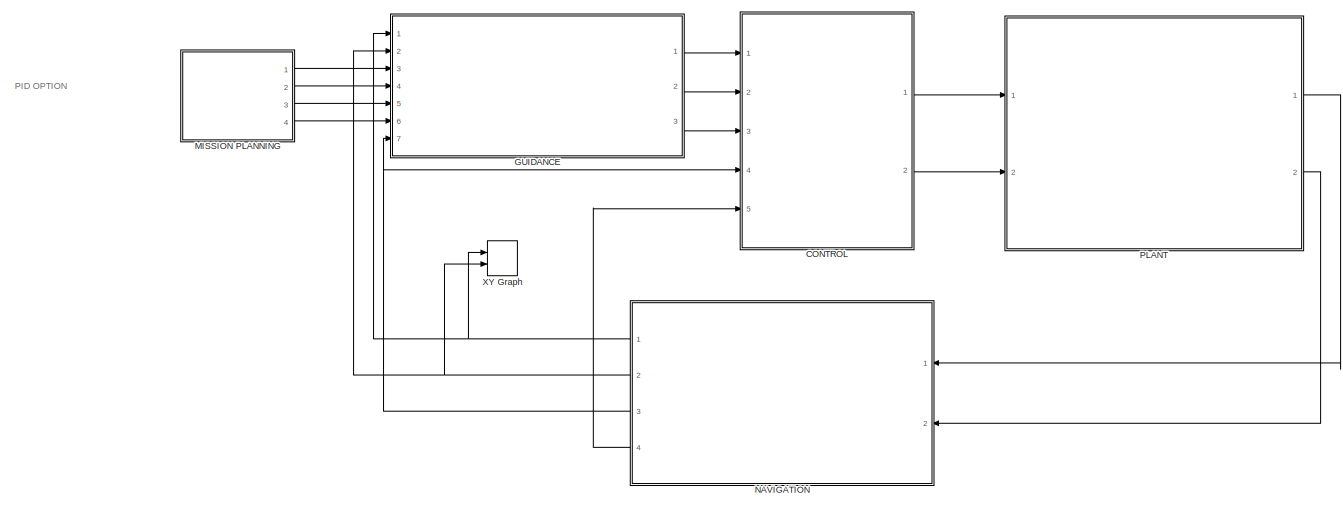
[diagram: root canvas - part 1/2, full width, top band]
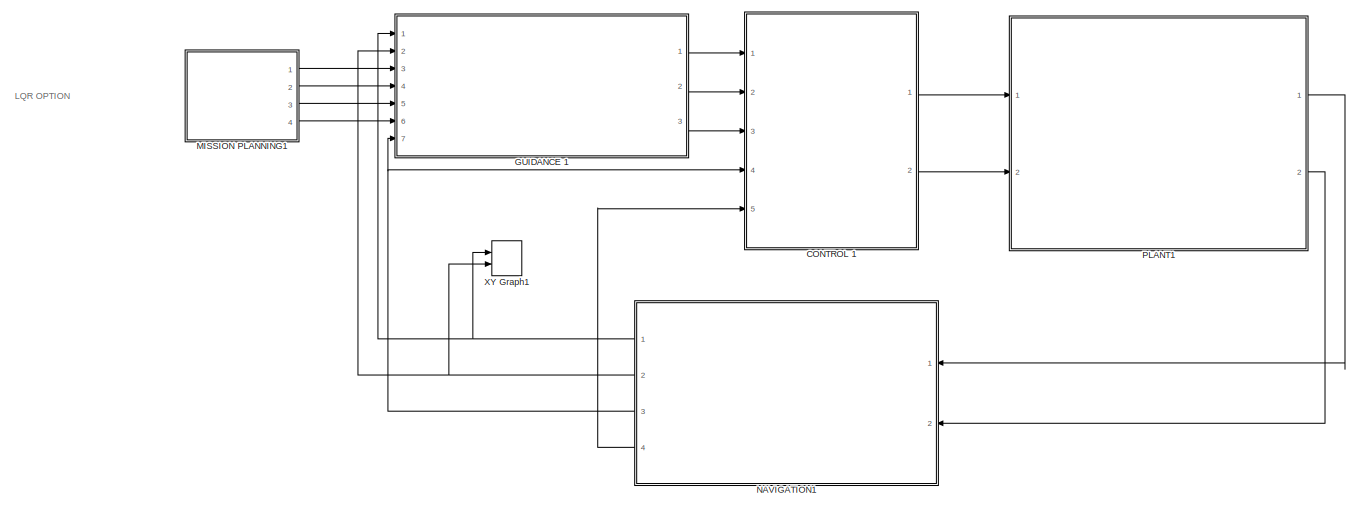
[diagram: root canvas - part 2/2, full width, bottom band]
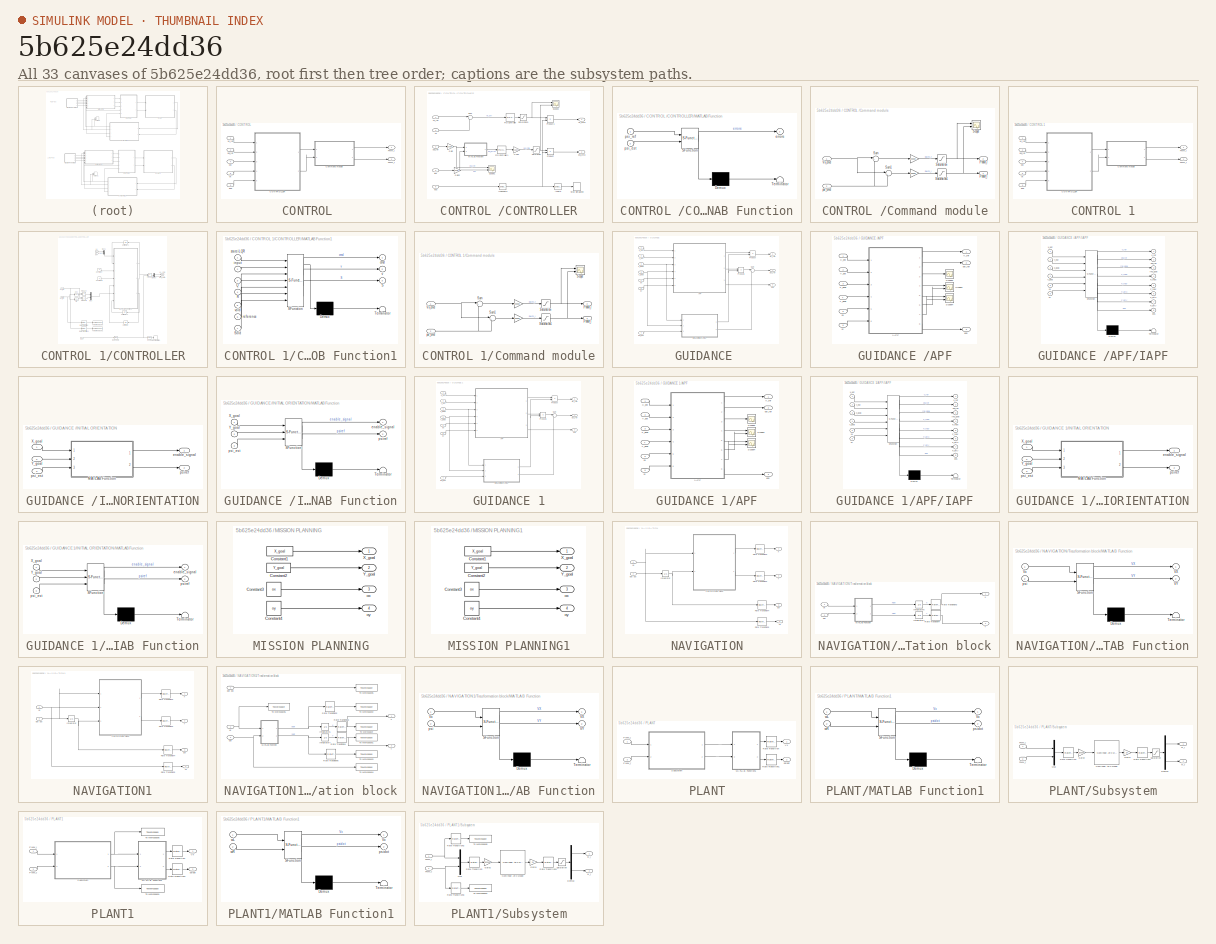
[diagram: thumbnail index - all 33 canvases of the model, root first then tree order]
MODEL slx_5b625e24dd36
KIND model
CONFIG AbsTol = auto
CONFIG EnableMultiTasking = off
CONFIG FixedStep = 0.01
CONFIG MaxStep = auto
CONFIG MinStep = auto
CONFIG RelTol = 1e-3
CONFIG SampleTimeConstraint = Unconstrained
CONFIG SolverName = ode1
CONFIG StartTime = 0.0
CONFIG StopTime = 90
BLOCK [SubSystem] CONTROL 
  Ports = [5, 2]
  RequestExecContextInheritance = off
BLOCK [SubSystem] CONTROL /CONTROLLER
  Ports = [5, 2]
  RequestExecContextInheritance = off
BLOCK [Gain] CONTROL /CONTROLLER/1//180
  Gain = 1/180
BLOCK [Gain] CONTROL /CONTROLLER/Gain
  Gain = 180/pi
BLOCK [Gain] CONTROL /CONTROLLER/Gain2
  Gain = 180/pi
BLOCK [Reference] CONTROL /CONTROLLER/IsNonZero  REF=simulink/Logic and Bit
Operations/Compare
To Zero
  Ports = [1, 1]
  SourceBlock = simulink/Logic and Bit\nOperations/Compare\nTo Zero
  SourceProductBaseCode = SL
  SourceType = Compare To Zero
BLOCK [Reference] CONTROL /CONTROLLER/IsZero  REF=simulink/Logic and Bit
Operations/Compare
To Zero
  Ports = [1, 1]
  SourceBlock = simulink/Logic and Bit\nOperations/Compare\nTo Zero
  SourceProductBaseCode = SL
  SourceType = Compare To Zero
BLOCK [SubSystem] CONTROL /CONTROLLER/MATLAB Function
  ErrorFcn = Stateflow.Translate.translate
  PermitHierarchicalResolution = ExplicitOnly
  Ports = [2, 1]
  RequestExecContextInheritance = off
  SFBlockType = MATLAB Function
  TreatAsAtomicUnit = on
BLOCK [Demux] CONTROL /CONTROLLER/MATLAB Function/ Demux 
  Outputs = 1
  Ports = [1, 1]
BLOCK [S-Function] CONTROL /CONTROLLER/MATLAB Function/ SFunction 
  EnableBusSupport = on
  FunctionName = sf_sfun
  PortCounts = [2 2]
  Ports = [2, 2]
  SFcnIsStateOwnerBlock = off
  SFunctionDeploymentMode = off
  Tag = Stateflow S-Function 5
BLOCK [Terminator] CONTROL /CONTROLLER/MATLAB Function/ Terminator 
BLOCK [Outport] CONTROL /CONTROLLER/MATLAB Function/errore
BLOCK [Inport] CONTROL /CONTROLLER/MATLAB Function/psi_est
  Port = 2
BLOCK [Inport] CONTROL /CONTROLLER/MATLAB Function/psi_ref
BLOCK [Reference] CONTROL /CONTROLLER/PID Controller  REF=slpidlib/PID Controller
  Ports = [1, 1]
  SourceBlock = slpidlib/PID Controller
  SourceProductBaseCode = SL
  SourceType = PID 1dof
BLOCK [Reference] CONTROL /CONTROLLER/PID Controller1  REF=slpidlib/PID Controller
  Ports = [1, 1]
  SourceBlock = slpidlib/PID Controller
  SourceProductBaseCode = SL
  SourceType = PID 1dof
BLOCK [Product] CONTROL /CONTROLLER/Product
  Ports = [2, 1]
BLOCK [Product] CONTROL /CONTROLLER/Product1
  Ports = [2, 1]
BLOCK [Saturate] CONTROL /CONTROLLER/Saturation
BLOCK [Saturate] CONTROL /CONTROLLER/Saturation1
  LowerLimit = -1
  UpperLimit = 1
BLOCK [Scope] CONTROL /CONTROLLER/Scope1
  Floating = off
  NumInputPorts = 2
  Ports = [2]
  ScopeSpecificationString = Simulink.scopes.TimeScopeBlockCfg('CurrentConfiguration', extmgr.ConfigurationSet(extmgr.Configuration('Core','General UI',true),extmgr.Configuration('Core','Source UI',true),extmgr.Configuration('Sources','WiredSimulink',true,'DataLoggingVariableName','ScopeData2'),extmgr.Configuration('Visuals','Time Domain',true,'SerializedDisplays',{struct('MinYLimReal','-224.91264','MaxYLimReal','224.9663','Y...<+1492ch>
BLOCK [Scope] CONTROL /CONTROLLER/Scope2
  Floating = off
  NumInputPorts = 2
  Ports = [2]
  ScopeSpecificationString = Simulink.scopes.TimeScopeBlockCfg('CurrentConfiguration', extmgr.ConfigurationSet(extmgr.Configuration('Core','General UI',true),extmgr.Configuration('Core','Source UI',true),extmgr.Configuration('Sources','WiredSimulink',true,'DataLoggingVariableName','ScopeData1'),extmgr.Configuration('Visuals','Time Domain',true,'SerializedDisplays',{struct('MinYLimReal','-1.22577','MaxYLimReal','1.03189','YLab...<+1427ch>
BLOCK [Stop] CONTROL /CONTROLLER/Stop Simulation
BLOCK [Sum] CONTROL /CONTROLLER/Sum
  Inputs = |+-
  Ports = [2, 1]
BLOCK [Inport] CONTROL /CONTROLLER/Vx
  Port = 4
BLOCK [Outport] CONTROL /CONTROLLER/Vx_cmd
BLOCK [Inport] CONTROL /CONTROLLER/Vx_ref
BLOCK [Inport] CONTROL /CONTROLLER/eos
  Port = 5
BLOCK [Inport] CONTROL /CONTROLLER/psi
  Port = 3
BLOCK [Outport] CONTROL /CONTROLLER/psi_cmd
  Port = 2
BLOCK [Inport] CONTROL /CONTROLLER/psi_ref
  Port = 2
BLOCK [SubSystem] CONTROL /Command module
  Ports = [2, 2]
  RequestExecContextInheritance = off
BLOCK [Gain] CONTROL /Command module/ 
  Gain = 20000
BLOCK [Gain] CONTROL /Command module/   
  Gain = 20000
BLOCK [Outport] CONTROL /Command module/PWM_l
BLOCK [Outport] CONTROL /Command module/PWM_r
  Port = 2
BLOCK [Saturate] CONTROL /Command module/Saturation
  LowerLimit = -20000
  UpperLimit = 20000
BLOCK [Saturate] CONTROL /Command module/Saturation1
  LowerLimit = -20000
  UpperLimit = 20000
BLOCK [Scope] CONTROL /Command module/Scope
  Floating = off
  NumInputPorts = 2
  Ports = [2]
  ScopeSpecificationString = Simulink.scopes.TimeScopeBlockCfg('CurrentConfiguration', extmgr.ConfigurationSet(extmgr.Configuration('Core','General UI',true),extmgr.Configuration('Core','Source UI',true),extmgr.Configuration('Sources','WiredSimulink',true,'DataLoggingVariableName','ScopeData4'),extmgr.Configuration('Visuals','Time Domain',true,'SerializedDisplays',{struct('MinYLimReal','-4186.09821','MaxYLimReal','17004.23029...<+1525ch>
BLOCK [Sum] CONTROL /Command module/Sum
  Inputs = |++
  Ports = [2, 1]
BLOCK [Sum] CONTROL /Command module/Sum1
  Inputs = |+-
  Ports = [2, 1]
BLOCK [Inport] CONTROL /Command module/Vx_cmd
BLOCK [Inport] CONTROL /Command module/psi_cmd
  Port = 2
BLOCK [Outport] CONTROL /PWM_l
BLOCK [Outport] CONTROL /PWM_r
  Port = 2
BLOCK [Inport] CONTROL /Vx
  Port = 5
BLOCK [Inport] CONTROL /Vx_ref
BLOCK [Inport] CONTROL /eos
  Port = 3
BLOCK [Inport] CONTROL /psi
  Port = 4
BLOCK [Inport] CONTROL /psi_ref
  Port = 2
BLOCK [SubSystem] CONTROL 1
  Ports = [5, 2]
  RequestExecContextInheritance = off
BLOCK [SubSystem] CONTROL 1/CONTROLLER
  Ports = [5, 2]
  RequestExecContextInheritance = off
BLOCK [Constant] CONTROL 1/CONTROLLER/Constant
  Value = Q
BLOCK [Constant] CONTROL 1/CONTROLLER/Constant1
  Value = R
BLOCK [Trigonometry] CONTROL 1/CONTROLLER/Cos
  Operator = cos
  Ports = [1, 1]
BLOCK [Demux] CONTROL 1/CONTROLLER/Demux
  Outputs = 2
  Ports = [1, 2]
BLOCK [Reference] CONTROL 1/CONTROLLER/IsNonZero  REF=simulink/Logic and Bit
Operations/Compare
To Zero
  Ports = [1, 1]
  SourceBlock = simulink/Logic and Bit\nOperations/Compare\nTo Zero
  SourceProductBaseCode = SL
  SourceType = Compare To Zero
BLOCK [Reference] CONTROL 1/CONTROLLER/IsZero  REF=simulink/Logic and Bit
Operations/Compare
To Zero
  Ports = [1, 1]
  SourceBlock = simulink/Logic and Bit\nOperations/Compare\nTo Zero
  SourceProductBaseCode = SL
  SourceType = Compare To Zero
BLOCK [SubSystem] CONTROL 1/CONTROLLER/MATLAB Function1
  ErrorFcn = Stateflow.Translate.translate
  PermitHierarchicalResolution = ExplicitOnly
  Ports = [7, 3]
  RequestExecContextInheritance = off
  SFBlockType = MATLAB Function
  TreatAsAtomicUnit = on
BLOCK [Demux] CONTROL 1/CONTROLLER/MATLAB Function1/ Demux 
  Outputs = 1
  Ports = [1, 1]
BLOCK [S-Function] CONTROL 1/CONTROLLER/MATLAB Function1/ SFunction 
  EnableBusSupport = on
  FunctionName = sf_sfun
  PortCounts = [7 4]
  Ports = [7, 4]
  SFcnIsStateOwnerBlock = off
  SFunctionDeploymentMode = off
  Tag = Stateflow S-Function 8
BLOCK [Terminator] CONTROL 1/CONTROLLER/MATLAB Function1/ Terminator 
BLOCK [Inport] CONTROL 1/CONTROLLER/MATLAB Function1/Q
  Port = 3
BLOCK [Inport] CONTROL 1/CONTROLLER/MATLAB Function1/R
  Port = 4
BLOCK [Outport] CONTROL 1/CONTROLLER/MATLAB Function1/S
  Port = 3
BLOCK [Inport] CONTROL 1/CONTROLLER/MATLAB Function1/Sold
  Port = 7
BLOCK [Outport] CONTROL 1/CONTROLLER/MATLAB Function1/cmd
BLOCK [Inport] CONTROL 1/CONTROLLER/MATLAB Function1/input
  Port = 2
BLOCK [Inport] CONTROL 1/CONTROLLER/MATLAB Function1/reference
  Port = 6
BLOCK [Inport] CONTROL 1/CONTROLLER/MATLAB Function1/stateiLQR
BLOCK [Outport] CONTROL 1/CONTROLLER/MATLAB Function1/v
  Port = 2
BLOCK [Inport] CONTROL 1/CONTROLLER/MATLAB Function1/vold
  Port = 5
BLOCK [Mux] CONTROL 1/CONTROLLER/Mux
  DisplayOption = bar
  Inputs = 2
  Ports = [2, 1]
BLOCK [Mux] CONTROL 1/CONTROLLER/Mux1
  DisplayOption = bar
  Inputs = 2
  Ports = [2, 1]
BLOCK [Product] CONTROL 1/CONTROLLER/Product
  Ports = [2, 1]
BLOCK [Product] CONTROL 1/CONTROLLER/Product1
  Ports = [2, 1]
BLOCK [Product] CONTROL 1/CONTROLLER/Product2
  Ports = [2, 1]
BLOCK [RateTransition] CONTROL 1/CONTROLLER/Rate Transition
BLOCK [RateTransition] CONTROL 1/CONTROLLER/Rate Transition1
BLOCK [Trigonometry] CONTROL 1/CONTROLLER/Sin
  Ports = [1, 1]
BLOCK [Stop] CONTROL 1/CONTROLLER/Stop Simulation
BLOCK [ToWorkspace] CONTROL 1/CONTROLLER/To Workspace1
  FixptAsFi = on
  MaxDataPoints = inf
  Ports = [1]
  SampleTime = -1
  SaveFormat = Structure With Time
  VariableName = Vx_ref
BLOCK [ToWorkspace] CONTROL 1/CONTROLLER/To Workspace5
  FixptAsFi = on
  MaxDataPoints = inf
  Ports = [1]
  SampleTime = -1
  SaveFormat = Structure With Time
  VariableName = psi_ref
BLOCK [UnitDelay] CONTROL 1/CONTROLLER/Unit Delay
  HasFrameUpgradeWarning = on
  InitialCondition = zeros(2,1)
  SampleTime = -1
BLOCK [UnitDelay] CONTROL 1/CONTROLLER/Unit Delay1
  HasFrameUpgradeWarning = on
  InitialCondition = [0, 0]
  SampleTime = -1
BLOCK [UnitDelay] CONTROL 1/CONTROLLER/Unit Delay2
  HasFrameUpgradeWarning = on
  InitialCondition = Qf
  SampleTime = -1
BLOCK [Inport] CONTROL 1/CONTROLLER/Vx
  NameLocation = right
  Port = 4
BLOCK [Outport] CONTROL 1/CONTROLLER/Vx_cmd
BLOCK [Inport] CONTROL 1/CONTROLLER/Vx_ref
BLOCK [Inport] CONTROL 1/CONTROLLER/eos
  Port = 5
BLOCK [Inport] CONTROL 1/CONTROLLER/psi
  Port = 3
BLOCK [Outport] CONTROL 1/CONTROLLER/psi_cmd
  Port = 2
BLOCK [Inport] CONTROL 1/CONTROLLER/psi_ref
  Port = 2
BLOCK [SubSystem] CONTROL 1/Command module
  Ports = [2, 2]
  RequestExecContextInheritance = off
BLOCK [Gain] CONTROL 1/Command module/ 
  Gain = 20000
BLOCK [Gain] CONTROL 1/Command module/   
  Gain = 20000
BLOCK [Outport] CONTROL 1/Command module/PWM_l
BLOCK [Outport] CONTROL 1/Command module/PWM_r
  Port = 2
BLOCK [Saturate] CONTROL 1/Command module/Saturation
  LowerLimit = -20000
  UpperLimit = 20000
BLOCK [Saturate] CONTROL 1/Command module/Saturation1
  LowerLimit = -20000
  UpperLimit = 20000
BLOCK [Scope] CONTROL 1/Command module/Scope
  Floating = off
  NumInputPorts = 2
  Ports = [2]
  ScopeSpecificationString = Simulink.scopes.TimeScopeBlockCfg('CurrentConfiguration', extmgr.ConfigurationSet(extmgr.Configuration('Core','General UI',true),extmgr.Configuration('Core','Source UI',true),extmgr.Configuration('Sources','WiredSimulink',true,'DataLoggingVariableName','ScopeData4'),extmgr.Configuration('Visuals','Time Domain',true,'SerializedDisplays',{struct('MinYLimReal','-4186.09821','MaxYLimReal','17004.23029...<+1525ch>
BLOCK [Sum] CONTROL 1/Command module/Sum
  Inputs = |++
  Ports = [2, 1]
BLOCK [Sum] CONTROL 1/Command module/Sum1
  Inputs = |+-
  Ports = [2, 1]
BLOCK [Inport] CONTROL 1/Command module/Vx_cmd
BLOCK [Inport] CONTROL 1/Command module/psi_cmd
  Port = 2
BLOCK [Outport] CONTROL 1/PWM_l
BLOCK [Outport] CONTROL 1/PWM_r
  Port = 2
BLOCK [Inport] CONTROL 1/Vx
  Port = 5
BLOCK [Inport] CONTROL 1/Vx_ref
BLOCK [Inport] CONTROL 1/eos
  Port = 3
BLOCK [Inport] CONTROL 1/psi
  Port = 4
BLOCK [Inport] CONTROL 1/psi_ref
  Port = 2
BLOCK [SubSystem] GUIDANCE 
  Ports = [7, 3]
  RequestExecContextInheritance = off
BLOCK [SubSystem] GUIDANCE /APF
  Ports = [6, 3]
  RequestExecContextInheritance = off
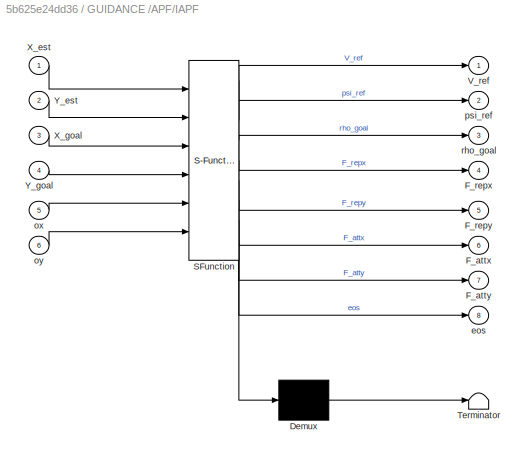
BLOCK [SubSystem] GUIDANCE /APF/IAPF
  ErrorFcn = Stateflow.Translate.translate
  PermitHierarchicalResolution = ExplicitOnly
  Ports = [6, 8]
  RequestExecContextInheritance = off
  SFBlockType = MATLAB Function
  TreatAsAtomicUnit = on
BLOCK [Demux] GUIDANCE /APF/IAPF/ Demux 
  Outputs = 1
  Ports = [1, 1]
BLOCK [S-Function] GUIDANCE /APF/IAPF/ SFunction 
  EnableBusSupport = on
  FunctionName = sf_sfun
  PortCounts = [6 9]
  Ports = [6, 9]
  SFcnIsStateOwnerBlock = off
  SFunctionDeploymentMode = off
  Tag = Stateflow S-Function 6
BLOCK [Terminator] GUIDANCE /APF/IAPF/ Terminator 
BLOCK [Outport] GUIDANCE /APF/IAPF/F_attx
  Port = 6
BLOCK [Outport] GUIDANCE /APF/IAPF/F_atty
  Port = 7
BLOCK [Outport] GUIDANCE /APF/IAPF/F_repx
  Port = 4
BLOCK [Outport] GUIDANCE /APF/IAPF/F_repy
  Port = 5
BLOCK [Outport] GUIDANCE /APF/IAPF/V_ref
BLOCK [Inport] GUIDANCE /APF/IAPF/X_est
BLOCK [Inport] GUIDANCE /APF/IAPF/X_goal
  Port = 3
BLOCK [Inport] GUIDANCE /APF/IAPF/Y_est
  Port = 2
BLOCK [Inport] GUIDANCE /APF/IAPF/Y_goal
  Port = 4
BLOCK [Outport] GUIDANCE /APF/IAPF/eos
  Port = 8
BLOCK [Inport] GUIDANCE /APF/IAPF/ox
  Port = 5
BLOCK [Inport] GUIDANCE /APF/IAPF/oy
  Port = 6
BLOCK [Outport] GUIDANCE /APF/IAPF/psi_ref
  Port = 2
BLOCK [Outport] GUIDANCE /APF/IAPF/rho_goal
  Port = 3
BLOCK [Scope] GUIDANCE /APF/Scope1
  Floating = off
  NumInputPorts = 2
  Ports = [2]
  ScopeSpecificationString = Simulink.scopes.TimeScopeBlockCfg('CurrentConfiguration', extmgr.ConfigurationSet(extmgr.Configuration('Core','General UI',true),extmgr.Configuration('Core','Source UI',true),extmgr.Configuration('Sources','WiredSimulink',true,'DataLoggingVariableName','ScopeData1'),extmgr.Configuration('Visuals','Time Domain',true,'SerializedDisplays',{struct('MinYLimReal','-0.54866','MaxYLimReal','0.29666','YLab...<+1500ch>
BLOCK [Scope] GUIDANCE /APF/Scope3
  Floating = off
  NumInputPorts = 1
  Ports = [1]
  ScopeSpecificationString = Simulink.scopes.TimeScopeBlockCfg('CurrentConfiguration', extmgr.ConfigurationSet(extmgr.Configuration('Core','General UI',true),extmgr.Configuration('Core','Source UI',true),extmgr.Configuration('Sources','WiredSimulink',true,'DataLoggingVariableName','ScopeData5'),extmgr.Configuration('Visuals','Time Domain',true,'SerializedDisplays',{struct('MinYLimReal','-1.36105','MaxYLimReal','12.72551','YLa...<+1420ch>
BLOCK [Scope] GUIDANCE /APF/Scope4
  Floating = off
  NumInputPorts = 2
  Ports = [2]
  ScopeSpecificationString = Simulink.scopes.TimeScopeBlockCfg('CurrentConfiguration', extmgr.ConfigurationSet(extmgr.Configuration('Core','General UI',true),extmgr.Configuration('Core','Source UI',true),extmgr.Configuration('Sources','WiredSimulink',true,'DataLoggingVariableName','ScopeData2'),extmgr.Configuration('Visuals','Time Domain',true,'SerializedDisplays',{struct('MinYLimReal','-0.03267','MaxYLimReal','0.25688','YLab...<+1437ch>
BLOCK [Outport] GUIDANCE /APF/V_ref
BLOCK [Inport] GUIDANCE /APF/X_est
BLOCK [Inport] GUIDANCE /APF/X_goal
  Port = 3
BLOCK [Inport] GUIDANCE /APF/Y_est
  Port = 2
BLOCK [Inport] GUIDANCE /APF/Y_goal
  Port = 4
BLOCK [Outport] GUIDANCE /APF/eos
  Port = 3
BLOCK [Inport] GUIDANCE /APF/ox
  Port = 5
BLOCK [Inport] GUIDANCE /APF/oy
  Port = 6
BLOCK [Outport] GUIDANCE /APF/psi_ref
  Port = 2
BLOCK [SubSystem] GUIDANCE /INITIAL ORIENTATION
  Ports = [3, 2]
  RequestExecContextInheritance = off
BLOCK [SubSystem] GUIDANCE /INITIAL ORIENTATION/MATLAB Function
  ErrorFcn = Stateflow.Translate.translate
  PermitHierarchicalResolution = ExplicitOnly
  Ports = [3, 2]
  RequestExecContextInheritance = off
  SFBlockType = MATLAB Function
  TreatAsAtomicUnit = on
BLOCK [Demux] GUIDANCE /INITIAL ORIENTATION/MATLAB Function/ Demux 
  Outputs = 1
  Ports = [1, 1]
BLOCK [S-Function] GUIDANCE /INITIAL ORIENTATION/MATLAB Function/ SFunction 
  EnableBusSupport = on
  FunctionName = sf_sfun
  PortCounts = [3 3]
  Ports = [3, 3]
  SFcnIsStateOwnerBlock = off
  SFunctionDeploymentMode = off
  Tag = Stateflow S-Function 1
BLOCK [Terminator] GUIDANCE /INITIAL ORIENTATION/MATLAB Function/ Terminator 
BLOCK [Inport] GUIDANCE /INITIAL ORIENTATION/MATLAB Function/X_goal
BLOCK [Inport] GUIDANCE /INITIAL ORIENTATION/MATLAB Function/Y_goal
  Port = 2
BLOCK [Outport] GUIDANCE /INITIAL ORIENTATION/MATLAB Function/enable_signal
BLOCK [Inport] GUIDANCE /INITIAL ORIENTATION/MATLAB Function/psi_est
  Port = 3
BLOCK [Outport] GUIDANCE /INITIAL ORIENTATION/MATLAB Function/psiref
  Port = 2
BLOCK [Inport] GUIDANCE /INITIAL ORIENTATION/X_goal
BLOCK [Inport] GUIDANCE /INITIAL ORIENTATION/Y_goal
  Port = 2
BLOCK [Outport] GUIDANCE /INITIAL ORIENTATION/enable_signal
BLOCK [Inport] GUIDANCE /INITIAL ORIENTATION/psi_est
  Port = 3
BLOCK [Outport] GUIDANCE /INITIAL ORIENTATION/psiref
  Port = 2
BLOCK [Product] GUIDANCE /Product
  Ports = [2, 1]
BLOCK [Product] GUIDANCE /Product1
  Ports = [2, 1]
BLOCK [Sum] GUIDANCE /Sum
  Inputs = |++
  Ports = [2, 1]
BLOCK [Outport] GUIDANCE /Vx_ref
BLOCK [Inport] GUIDANCE /X_est
BLOCK [Inport] GUIDANCE /X_goal
  Port = 3
BLOCK [Inport] GUIDANCE /Y_est
  Port = 2
BLOCK [Inport] GUIDANCE /Y_goal
  Port = 4
BLOCK [Outport] GUIDANCE /eos
  Port = 3
BLOCK [Inport] GUIDANCE /ox
  Port = 5
BLOCK [Inport] GUIDANCE /oy
  Port = 6
BLOCK [Inport] GUIDANCE /psi_est
  Port = 7
BLOCK [Outport] GUIDANCE /psi_ref
  Port = 2
BLOCK [SubSystem] GUIDANCE 1
  Ports = [7, 3]
  RequestExecContextInheritance = off
BLOCK [SubSystem] GUIDANCE 1/APF
  Ports = [6, 3]
  RequestExecContextInheritance = off
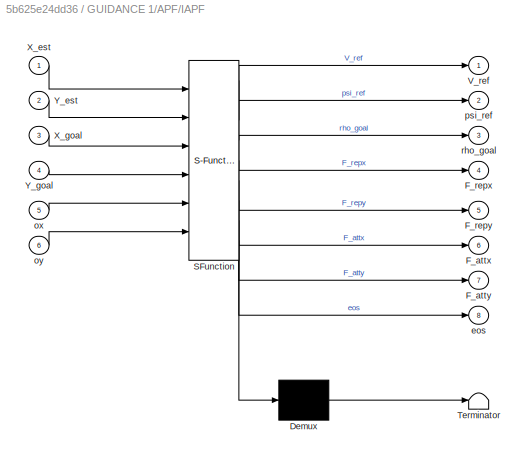
BLOCK [SubSystem] GUIDANCE 1/APF/IAPF
  ErrorFcn = Stateflow.Translate.translate
  PermitHierarchicalResolution = ExplicitOnly
  Ports = [6, 8]
  RequestExecContextInheritance = off
  SFBlockType = MATLAB Function
  TreatAsAtomicUnit = on
BLOCK [Demux] GUIDANCE 1/APF/IAPF/ Demux 
  Outputs = 1
  Ports = [1, 1]
BLOCK [S-Function] GUIDANCE 1/APF/IAPF/ SFunction 
  EnableBusSupport = on
  FunctionName = sf_sfun
  PortCounts = [6 9]
  Ports = [6, 9]
  SFcnIsStateOwnerBlock = off
  SFunctionDeploymentMode = off
  Tag = Stateflow S-Function 9
BLOCK [Terminator] GUIDANCE 1/APF/IAPF/ Terminator 
BLOCK [Outport] GUIDANCE 1/APF/IAPF/F_attx
  Port = 6
BLOCK [Outport] GUIDANCE 1/APF/IAPF/F_atty
  Port = 7
BLOCK [Outport] GUIDANCE 1/APF/IAPF/F_repx
  Port = 4
BLOCK [Outport] GUIDANCE 1/APF/IAPF/F_repy
  Port = 5
BLOCK [Outport] GUIDANCE 1/APF/IAPF/V_ref
BLOCK [Inport] GUIDANCE 1/APF/IAPF/X_est
BLOCK [Inport] GUIDANCE 1/APF/IAPF/X_goal
  Port = 3
BLOCK [Inport] GUIDANCE 1/APF/IAPF/Y_est
  Port = 2
BLOCK [Inport] GUIDANCE 1/APF/IAPF/Y_goal
  Port = 4
BLOCK [Outport] GUIDANCE 1/APF/IAPF/eos
  Port = 8
BLOCK [Inport] GUIDANCE 1/APF/IAPF/ox
  Port = 5
BLOCK [Inport] GUIDANCE 1/APF/IAPF/oy
  Port = 6
BLOCK [Outport] GUIDANCE 1/APF/IAPF/psi_ref
  Port = 2
BLOCK [Outport] GUIDANCE 1/APF/IAPF/rho_goal
  Port = 3
BLOCK [Scope] GUIDANCE 1/APF/Scope1
  Floating = off
  NumInputPorts = 2
  Ports = [2]
  ScopeSpecificationString = Simulink.scopes.TimeScopeBlockCfg('CurrentConfiguration', extmgr.ConfigurationSet(extmgr.Configuration('Core','General UI',true),extmgr.Configuration('Core','Source UI',true),extmgr.Configuration('Sources','WiredSimulink',true,'DataLoggingVariableName','ScopeData1'),extmgr.Configuration('Visuals','Time Domain',true,'SerializedDisplays',{struct('MinYLimReal','-0.54866','MaxYLimReal','0.29666','YLab...<+1500ch>
BLOCK [Scope] GUIDANCE 1/APF/Scope3
  Floating = off
  NumInputPorts = 1
  Ports = [1]
  ScopeSpecificationString = Simulink.scopes.TimeScopeBlockCfg('CurrentConfiguration', extmgr.ConfigurationSet(extmgr.Configuration('Core','General UI',true),extmgr.Configuration('Core','Source UI',true),extmgr.Configuration('Sources','WiredSimulink',true,'DataLoggingVariableName','ScopeData5'),extmgr.Configuration('Visuals','Time Domain',true,'SerializedDisplays',{struct('MinYLimReal','-1.36105','MaxYLimReal','12.72551','YLa...<+1420ch>
BLOCK [Scope] GUIDANCE 1/APF/Scope4
  Floating = off
  NumInputPorts = 2
  Ports = [2]
  ScopeSpecificationString = Simulink.scopes.TimeScopeBlockCfg('CurrentConfiguration', extmgr.ConfigurationSet(extmgr.Configuration('Core','General UI',true),extmgr.Configuration('Core','Source UI',true),extmgr.Configuration('Sources','WiredSimulink',true,'DataLoggingVariableName','ScopeData2'),extmgr.Configuration('Visuals','Time Domain',true,'SerializedDisplays',{struct('MinYLimReal','-0.03267','MaxYLimReal','0.25688','YLab...<+1437ch>
BLOCK [Outport] GUIDANCE 1/APF/V_ref
BLOCK [Inport] GUIDANCE 1/APF/X_est
BLOCK [Inport] GUIDANCE 1/APF/X_goal
  Port = 3
BLOCK [Inport] GUIDANCE 1/APF/Y_est
  Port = 2
BLOCK [Inport] GUIDANCE 1/APF/Y_goal
  Port = 4
BLOCK [Outport] GUIDANCE 1/APF/eos
  Port = 3
BLOCK [Inport] GUIDANCE 1/APF/ox
  Port = 5
BLOCK [Inport] GUIDANCE 1/APF/oy
  Port = 6
BLOCK [Outport] GUIDANCE 1/APF/psi_ref
  Port = 2
BLOCK [SubSystem] GUIDANCE 1/INITIAL ORIENTATION
  Ports = [3, 2]
  RequestExecContextInheritance = off
BLOCK [SubSystem] GUIDANCE 1/INITIAL ORIENTATION/MATLAB Function
  ErrorFcn = Stateflow.Translate.translate
  PermitHierarchicalResolution = ExplicitOnly
  Ports = [3, 2]
  RequestExecContextInheritance = off
  SFBlockType = MATLAB Function
  TreatAsAtomicUnit = on
BLOCK [Demux] GUIDANCE 1/INITIAL ORIENTATION/MATLAB Function/ Demux 
  Outputs = 1
  Ports = [1, 1]
BLOCK [S-Function] GUIDANCE 1/INITIAL ORIENTATION/MATLAB Function/ SFunction 
  EnableBusSupport = on
  FunctionName = sf_sfun
  PortCounts = [3 3]
  Ports = [3, 3]
  SFcnIsStateOwnerBlock = off
  SFunctionDeploymentMode = off
  Tag = Stateflow S-Function 10
BLOCK [Terminator] GUIDANCE 1/INITIAL ORIENTATION/MATLAB Function/ Terminator 
BLOCK [Inport] GUIDANCE 1/INITIAL ORIENTATION/MATLAB Function/X_goal
BLOCK [Inport] GUIDANCE 1/INITIAL ORIENTATION/MATLAB Function/Y_goal
  Port = 2
BLOCK [Outport] GUIDANCE 1/INITIAL ORIENTATION/MATLAB Function/enable_signal
BLOCK [Inport] GUIDANCE 1/INITIAL ORIENTATION/MATLAB Function/psi_est
  Port = 3
BLOCK [Outport] GUIDANCE 1/INITIAL ORIENTATION/MATLAB Function/psiref
  Port = 2
BLOCK [Inport] GUIDANCE 1/INITIAL ORIENTATION/X_goal
BLOCK [Inport] GUIDANCE 1/INITIAL ORIENTATION/Y_goal
  Port = 2
BLOCK [Outport] GUIDANCE 1/INITIAL ORIENTATION/enable_signal
BLOCK [Inport] GUIDANCE 1/INITIAL ORIENTATION/psi_est
  Port = 3
BLOCK [Outport] GUIDANCE 1/INITIAL ORIENTATION/psiref
  Port = 2
BLOCK [Product] GUIDANCE 1/Product
  Ports = [2, 1]
BLOCK [Product] GUIDANCE 1/Product1
  Ports = [2, 1]
BLOCK [Sum] GUIDANCE 1/Sum
  Inputs = |++
  Ports = [2, 1]
BLOCK [Outport] GUIDANCE 1/Vx_ref
BLOCK [Inport] GUIDANCE 1/X_est
BLOCK [Inport] GUIDANCE 1/X_goal
  Port = 3
BLOCK [Inport] GUIDANCE 1/Y_est
  Port = 2
BLOCK [Inport] GUIDANCE 1/Y_goal
  Port = 4
BLOCK [Outport] GUIDANCE 1/eos
  Port = 3
BLOCK [Inport] GUIDANCE 1/ox
  Port = 5
BLOCK [Inport] GUIDANCE 1/oy
  Port = 6
BLOCK [Inport] GUIDANCE 1/psi_est
  Port = 7
BLOCK [Outport] GUIDANCE 1/psi_ref
  Port = 2
BLOCK [SubSystem] MISSION PLANNING
  Ports = [0, 4]
  RequestExecContextInheritance = off
BLOCK [Constant] MISSION PLANNING/Constant1
  Value = X_goal
BLOCK [Constant] MISSION PLANNING/Constant2
  Value = Y_goal
BLOCK [Constant] MISSION PLANNING/Constant3
  Value = ox
BLOCK [Constant] MISSION PLANNING/Constant4
  Value = oy
BLOCK [Outport] MISSION PLANNING/X_goal
BLOCK [Outport] MISSION PLANNING/Y_goal
  Port = 2
BLOCK [Outport] MISSION PLANNING/ox
  Port = 3
BLOCK [Outport] MISSION PLANNING/oy
  Port = 4
BLOCK [SubSystem] MISSION PLANNING1
  Ports = [0, 4]
  RequestExecContextInheritance = off
BLOCK [Constant] MISSION PLANNING1/Constant1
  Value = X_goal
BLOCK [Constant] MISSION PLANNING1/Constant2
  Value = Y_goal
BLOCK [Constant] MISSION PLANNING1/Constant3
  Value = ox
BLOCK [Constant] MISSION PLANNING1/Constant4
  Value = oy
BLOCK [Outport] MISSION PLANNING1/X_goal
BLOCK [Outport] MISSION PLANNING1/Y_goal
  Port = 2
BLOCK [Outport] MISSION PLANNING1/ox
  Port = 3
BLOCK [Outport] MISSION PLANNING1/oy
  Port = 4
BLOCK [SubSystem] NAVIGATION
  Ports = [2, 4]
  RequestExecContextInheritance = off
BLOCK [Outport] NAVIGATION/ Vx
  Port = 4
BLOCK [Integrator] NAVIGATION/Integrator
  InitialCondition = psi_0
  Ports = [1, 1]
  WrapState = on
BLOCK [RateTransition] NAVIGATION/Rate Transition2
  NameLocation = top
  OutPortSampleTime = 0.1
BLOCK [RateTransition] NAVIGATION/Rate Transition3
  NameLocation = top
  OutPortSampleTime = 0.1
BLOCK [RateTransition] NAVIGATION/Rate Transition4
  NameLocation = top
  OutPortSampleTime = 0.1
BLOCK [RateTransition] NAVIGATION/Rate Transition5
  NameLocation = top
  OutPortSampleTime = 0.1
BLOCK [SubSystem] NAVIGATION/Trasformation block
  Ports = [2, 2]
  RequestExecContextInheritance = off
BLOCK [Integrator] NAVIGATION/Trasformation block/Integrator5
  InitialCondition = X_0
  Ports = [1, 1]
BLOCK [Integrator] NAVIGATION/Trasformation block/Integrator7
  InitialCondition = Y_0
  Ports = [1, 1]
BLOCK [SubSystem] NAVIGATION/Trasformation block/MATLAB Function
  ErrorFcn = Stateflow.Translate.translate
  PermitHierarchicalResolution = ExplicitOnly
  Ports = [2, 2]
  RequestExecContextInheritance = off
  SFBlockType = MATLAB Function
  TreatAsAtomicUnit = on
BLOCK [Demux] NAVIGATION/Trasformation block/MATLAB Function/ Demux 
  Outputs = 1
  Ports = [1, 1]
BLOCK [S-Function] NAVIGATION/Trasformation block/MATLAB Function/ SFunction 
  EnableBusSupport = on
  FunctionName = sf_sfun
  PortCounts = [2 3]
  Ports = [2, 3]
  SFcnIsStateOwnerBlock = off
  SFunctionDeploymentMode = off
  Tag = Stateflow S-Function 3
BLOCK [Terminator] NAVIGATION/Trasformation block/MATLAB Function/ Terminator 
BLOCK [Outport] NAVIGATION/Trasformation block/MATLAB Function/VX
BLOCK [Outport] NAVIGATION/Trasformation block/MATLAB Function/VY
  Port = 2
BLOCK [Inport] NAVIGATION/Trasformation block/MATLAB Function/Vx
BLOCK [Inport] NAVIGATION/Trasformation block/MATLAB Function/psi
  Port = 2
BLOCK [RateTransition] NAVIGATION/Trasformation block/Rate Transition3
BLOCK [RateTransition] NAVIGATION/Trasformation block/Rate Transition4
BLOCK [Inport] NAVIGATION/Trasformation block/Vx
BLOCK [Outport] NAVIGATION/Trasformation block/X
BLOCK [Outport] NAVIGATION/Trasformation block/Y
  Port = 2
BLOCK [Inport] NAVIGATION/Trasformation block/psi
  Port = 2
BLOCK [Inport] NAVIGATION/Vx
BLOCK [Outport] NAVIGATION/X
BLOCK [Outport] NAVIGATION/Y
  Port = 2
BLOCK [Inport] NAVIGATION/dot psi
  Port = 2
BLOCK [Outport] NAVIGATION/psi
  Port = 3
BLOCK [SubSystem] NAVIGATION1
  Ports = [2, 4]
  RequestExecContextInheritance = off
BLOCK [Outport] NAVIGATION1/ Vx
  Port = 4
BLOCK [Integrator] NAVIGATION1/Integrator
  InitialCondition = psi_0
  Ports = [1, 1]
  WrapState = on
BLOCK [RateTransition] NAVIGATION1/Rate Transition2
  NameLocation = top
  OutPortSampleTime = 0.1
BLOCK [RateTransition] NAVIGATION1/Rate Transition3
  NameLocation = top
  OutPortSampleTime = 0.1
BLOCK [RateTransition] NAVIGATION1/Rate Transition4
  NameLocation = top
  OutPortSampleTime = 0.1
BLOCK [RateTransition] NAVIGATION1/Rate Transition5
  NameLocation = top
  OutPortSampleTime = 0.1
BLOCK [SubSystem] NAVIGATION1/Trasformation block
  Ports = [3, 2]
  RequestExecContextInheritance = off
BLOCK [Integrator] NAVIGATION1/Trasformation block/Integrator5
  InitialCondition = X_0
  Ports = [1, 1]
BLOCK [Integrator] NAVIGATION1/Trasformation block/Integrator7
  InitialCondition = Y_0
  Ports = [1, 1]
BLOCK [SubSystem] NAVIGATION1/Trasformation block/MATLAB Function
  ErrorFcn = Stateflow.Translate.translate
  PermitHierarchicalResolution = ExplicitOnly
  Ports = [2, 2]
  RequestExecContextInheritance = off
  SFBlockType = MATLAB Function
  TreatAsAtomicUnit = on
BLOCK [Demux] NAVIGATION1/Trasformation block/MATLAB Function/ Demux 
  Outputs = 1
  Ports = [1, 1]
BLOCK [S-Function] NAVIGATION1/Trasformation block/MATLAB Function/ SFunction 
  EnableBusSupport = on
  FunctionName = sf_sfun
  PortCounts = [2 3]
  Ports = [2, 3]
  SFcnIsStateOwnerBlock = off
  SFunctionDeploymentMode = off
  Tag = Stateflow S-Function 11
BLOCK [Terminator] NAVIGATION1/Trasformation block/MATLAB Function/ Terminator 
BLOCK [Outport] NAVIGATION1/Trasformation block/MATLAB Function/VX
BLOCK [Outport] NAVIGATION1/Trasformation block/MATLAB Function/VY
  Port = 2
BLOCK [Inport] NAVIGATION1/Trasformation block/MATLAB Function/Vx
BLOCK [Inport] NAVIGATION1/Trasformation block/MATLAB Function/psi
  Port = 2
BLOCK [RateTransition] NAVIGATION1/Trasformation block/Rate Transition2
BLOCK [RateTransition] NAVIGATION1/Trasformation block/Rate Transition3
BLOCK [RateTransition] NAVIGATION1/Trasformation block/Rate Transition4
BLOCK [RateTransition] NAVIGATION1/Trasformation block/Rate Transition5
BLOCK [ToWorkspace] NAVIGATION1/Trasformation block/To Workspace
  FixptAsFi = on
  MaxDataPoints = inf
  Ports = [1]
  SampleTime = -1
  SaveFormat = Structure With Time
  VariableName = X
BLOCK [ToWorkspace] NAVIGATION1/Trasformation block/To Workspace1
  FixptAsFi = on
  MaxDataPoints = inf
  Ports = [1]
  SampleTime = -1
  SaveFormat = Structure With Time
  VariableName = Y
BLOCK [ToWorkspace] NAVIGATION1/Trasformation block/To Workspace2
  FixptAsFi = on
  MaxDataPoints = inf
  Ports = [1]
  SampleTime = -1
  SaveFormat = Structure With Time
  VariableName = Xdot
BLOCK [ToWorkspace] NAVIGATION1/Trasformation block/To Workspace3
  FixptAsFi = on
  MaxDataPoints = inf
  Ports = [1]
  SampleTime = -1
  SaveFormat = Structure With Time
  VariableName = Ydot
BLOCK [ToWorkspace] NAVIGATION1/Trasformation block/To Workspace4
  FixptAsFi = on
  MaxDataPoints = inf
  Ports = [1]
  SampleTime = -1
  SaveFormat = Structure With Time
  VariableName = psi
BLOCK [ToWorkspace] NAVIGATION1/Trasformation block/To Workspace5
  FixptAsFi = on
  MaxDataPoints = inf
  Ports = [1]
  SampleTime = -1
  SaveFormat = Structure With Time
  VariableName = psidot
BLOCK [ToWorkspace] NAVIGATION1/Trasformation block/To Workspace6
  FixptAsFi = on
  MaxDataPoints = inf
  Ports = [1]
  SampleTime = -1
  SaveFormat = Structure With Time
  VariableName = Vx
BLOCK [Inport] NAVIGATION1/Trasformation block/Vx
  Port = 2
BLOCK [Outport] NAVIGATION1/Trasformation block/X
BLOCK [Outport] NAVIGATION1/Trasformation block/Y
  Port = 2
BLOCK [Inport] NAVIGATION1/Trasformation block/dot psi
BLOCK [Inport] NAVIGATION1/Trasformation block/psi
  Port = 3
BLOCK [Inport] NAVIGATION1/Vx
BLOCK [Outport] NAVIGATION1/X
BLOCK [Outport] NAVIGATION1/Y
  Port = 2
BLOCK [Inport] NAVIGATION1/dot psi
  Port = 2
BLOCK [Outport] NAVIGATION1/psi
  Port = 3
BLOCK [SubSystem] PLANT
  Ports = [2, 2]
  RequestExecContextInheritance = off
BLOCK [SubSystem] PLANT/MATLAB Function1
  ErrorFcn = Stateflow.Translate.translate
  PermitHierarchicalResolution = ExplicitOnly
  Ports = [2, 2]
  RequestExecContextInheritance = off
  SFBlockType = MATLAB Function
  TreatAsAtomicUnit = on
BLOCK [Demux] PLANT/MATLAB Function1/ Demux 
  Outputs = 1
  Ports = [1, 1]
BLOCK [S-Function] PLANT/MATLAB Function1/ SFunction 
  EnableBusSupport = on
  FunctionName = sf_sfun
  PortCounts = [2 3]
  Ports = [2, 3]
  SFcnIsStateOwnerBlock = off
  SFunctionDeploymentMode = off
  Tag = Stateflow S-Function 2
BLOCK [Terminator] PLANT/MATLAB Function1/ Terminator 
BLOCK [Outport] PLANT/MATLAB Function1/Vx
BLOCK [Outport] PLANT/MATLAB Function1/psidot
  Port = 2
BLOCK [Inport] PLANT/MATLAB Function1/wL
BLOCK [Inport] PLANT/MATLAB Function1/wR
  Port = 2
BLOCK [Inport] PLANT/PWM_l
BLOCK [Inport] PLANT/PWM_r
  Port = 2
BLOCK [RateTransition] PLANT/Rate Transition
BLOCK [RateTransition] PLANT/Rate Transition1
BLOCK [SubSystem] PLANT/Subsystem
  Ports = [2, 2]
  RequestExecContextInheritance = off
BLOCK [Demux] PLANT/Subsystem/Demux
  Outputs = 2
  Ports = [1, 2]
BLOCK [Gain] PLANT/Subsystem/Gain2
  Gain = 1/20000
BLOCK [Gain] PLANT/Subsystem/Gain4
  Gain = 20
BLOCK [Mux] PLANT/Subsystem/Mux
  DisplayOption = bar
  Inputs = 2
  Ports = [2, 1]
BLOCK [Reference] PLANT/Subsystem/Nonlinear ARX Model  REF=slident/Models/Nonlinear ARX Model  (lib defined in mdl_f7d4911ca73a)
  Ports = [1, 1]
  SourceBlock = slident/Models/Nonlinear ARX Model
  SourceProductBaseCode = ID
  SourceType = Nonlinear ARX Model
BLOCK [Inport] PLANT/Subsystem/PWM_l
BLOCK [Inport] PLANT/Subsystem/PWM_r
  Port = 2
BLOCK [RateTransition] PLANT/Subsystem/Rate Transition
BLOCK [RateTransition] PLANT/Subsystem/Rate Transition1
BLOCK [Saturate] PLANT/Subsystem/Saturation
  LowerLimit = -20
  UpperLimit = 20
BLOCK [Outport] PLANT/Subsystem/w_l
BLOCK [Outport] PLANT/Subsystem/w_r
  Port = 2
BLOCK [Outport] PLANT/Vx
BLOCK [Outport] PLANT/psidot
  Port = 2
BLOCK [SubSystem] PLANT1
  Ports = [2, 2]
  RequestExecContextInheritance = off
BLOCK [SubSystem] PLANT1/MATLAB Function1
  ErrorFcn = Stateflow.Translate.translate
  PermitHierarchicalResolution = ExplicitOnly
  Ports = [2, 2]
  RequestExecContextInheritance = off
  SFBlockType = MATLAB Function
  TreatAsAtomicUnit = on
BLOCK [Demux] PLANT1/MATLAB Function1/ Demux 
  Outputs = 1
  Ports = [1, 1]
BLOCK [S-Function] PLANT1/MATLAB Function1/ SFunction 
  EnableBusSupport = on
  FunctionName = sf_sfun
  PortCounts = [2 3]
  Ports = [2, 3]
  SFcnIsStateOwnerBlock = off
  SFunctionDeploymentMode = off
  Tag = Stateflow S-Function 12
BLOCK [Terminator] PLANT1/MATLAB Function1/ Terminator 
BLOCK [Outport] PLANT1/MATLAB Function1/Vx
BLOCK [Outport] PLANT1/MATLAB Function1/psidot
  Port = 2
BLOCK [Inport] PLANT1/MATLAB Function1/wL
BLOCK [Inport] PLANT1/MATLAB Function1/wR
  Port = 2
BLOCK [Inport] PLANT1/PWM_l
BLOCK [Inport] PLANT1/PWM_r
  Port = 2
BLOCK [RateTransition] PLANT1/Rate Transition
BLOCK [RateTransition] PLANT1/Rate Transition1
BLOCK [SubSystem] PLANT1/Subsystem
  Ports = [2, 2]
  RequestExecContextInheritance = off
BLOCK [Demux] PLANT1/Subsystem/Demux
  Outputs = 2
  Ports = [1, 2]
BLOCK [Gain] PLANT1/Subsystem/Gain2
  Gain = 1/20000
BLOCK [Gain] PLANT1/Subsystem/Gain4
  Gain = 20
BLOCK [Mux] PLANT1/Subsystem/Mux
  DisplayOption = bar
  Inputs = 2
  Ports = [2, 1]
BLOCK [Reference] PLANT1/Subsystem/Nonlinear ARX Model  REF=slident/Models/Nonlinear ARX Model  (lib defined in mdl_f7d4911ca73a)
  Ports = [1, 1]
  SourceBlock = slident/Models/Nonlinear ARX Model
  SourceProductBaseCode = ID
  SourceType = Nonlinear ARX Model
BLOCK [Inport] PLANT1/Subsystem/PWM_l
BLOCK [Inport] PLANT1/Subsystem/PWM_r
  Port = 2
BLOCK [RateTransition] PLANT1/Subsystem/Rate Transition
BLOCK [RateTransition] PLANT1/Subsystem/Rate Transition1
BLOCK [RateTransition] PLANT1/Subsystem/Rate Transition2
BLOCK [RateTransition] PLANT1/Subsystem/Rate Transition3
BLOCK [Saturate] PLANT1/Subsystem/Saturation
  LowerLimit = -20
  UpperLimit = 20
BLOCK [ToWorkspace] PLANT1/Subsystem/To Workspace1
  FixptAsFi = on
  MaxDataPoints = inf
  Ports = [1]
  SampleTime = -1
  SaveFormat = Structure With Time
  VariableName = pwm_r
BLOCK [ToWorkspace] PLANT1/Subsystem/To Workspace5
  FixptAsFi = on
  MaxDataPoints = inf
  Ports = [1]
  SampleTime = -1
  SaveFormat = Structure With Time
  VariableName = pwm_l
BLOCK [Outport] PLANT1/Subsystem/w_l
BLOCK [Outport] PLANT1/Subsystem/w_r
  Port = 2
BLOCK [ToWorkspace] PLANT1/To Workspace1
  FixptAsFi = on
  MaxDataPoints = inf
  Ports = [1]
  SampleTime = -1
  SaveFormat = Structure With Time
  VariableName = wR
BLOCK [ToWorkspace] PLANT1/To Workspace5
  FixptAsFi = on
  MaxDataPoints = inf
  Ports = [1]
  SampleTime = -1
  SaveFormat = Structure With Time
  VariableName = wL
BLOCK [Outport] PLANT1/Vx
BLOCK [Outport] PLANT1/psidot
  Port = 2
BLOCK [Record] XY Graph
  CompatibilityTag = XY
  FileSettingsInternal = {"entries":[{"content":{"excelSettings":{"content":{},"type":"Streamout.ExcelSettings"}},"type":"Streamout.FileSettingStorage","uuid":"ac18967a-1430-4277-a356-856135fdca50"}],"packageUris":["http://schema.mathworks.com/mf0/streamout_blocks/R2020a"],"version":"1.0"}
  Layout = [1 1]
  Ports = [2]
  SignalsInternal = {"entries":[{"content":{"signals":[{"content":{"blockPath":["Devastator_simulatoriLQR3/XY Graph"],"channel":[],"dimensions":[1],"domain":"Devastator_simulatoriLQR3/XY Graph","lineColor":"#ff6929","plots":[],"port":1,"sid":[],"signalID":17,"signalName":"NAVIGATION:1"},"type":"RecordBlkView.Signal","uuid":"e5808930-8a18-48b1-8c3a-c3a1f8483a7c"},{"content":{"blockPath":["Devastator_simulatoriLQR3/XY ...<+431ch>
  VisualizationBindings = {"xyplotplugin":{"info":[{"series":[],"subplotID":1}]}}
  st = -1
BLOCK [Record] XY Graph1
  CompatibilityTag = XY
  FileSettingsInternal = {"entries":[{"content":{"excelSettings":{"content":{},"type":"Streamout.ExcelSettings"}},"type":"Streamout.FileSettingStorage","uuid":"afe6a102-72ac-49d5-a311-0ff7b74c67e9"}],"packageUris":["http://schema.mathworks.com/mf0/streamout_blocks/R2020a"],"version":"1.0"}
  Layout = [1 1]
  Ports = [2]
  SignalsInternal = {"entries":[{"content":{"signals":[{"content":{"blockPath":["Devastator_simulatoriLQR3/XY Graph1"],"channel":[],"dimensions":[1],"domain":"Devastator_simulatoriLQR3/XY Graph1","lineColor":"#a2142f","plots":[1],"port":1,"sid":[""],"signalID":36,"signalName":"NAVIGATION1:1"},"type":"RecordBlkView.Signal","uuid":"5465ef25-ce53-4d83-be81-cec6650e3282"},{"content":{"blockPath":["Devastator_simulatoriLQ...<+443ch>
  VisualizationBindings = {"xyplotplugin":{"info":[{"series":[{"bindingParametersList":[{"parameter":"X-Axis","signalID":36,"signalName":"NAVIGATION1:1"},{"parameter":"Y-Axis","signalID":40,"signalName":"NAVIGATION1:2"}],"seriesID":51226}],"subplotID":1}]}}
  st = -1
ANNOTATION (root): LQR OPTION
ANNOTATION (root): PID OPTION
LINE CONTROL /CONTROLLER/1//180:1 -> CONTROL /CONTROLLER/Saturation:1
NET CONTROL /CONTROLLER/Gain2:1 -> CONTROL /CONTROLLER/MATLAB Function:2, CONTROL /CONTROLLER/Scope1:2
NET CONTROL /CONTROLLER/Gain:1 -> CONTROL /CONTROLLER/MATLAB Function:1, CONTROL /CONTROLLER/Scope1:1
NET CONTROL /CONTROLLER/IsNonZero:1 -> CONTROL /CONTROLLER/IsZero:1, CONTROL /CONTROLLER/Product1:2, CONTROL /CONTROLLER/Product:2
LINE CONTROL /CONTROLLER/IsZero:1 -> CONTROL /CONTROLLER/Stop Simulation:1
LINE CONTROL /CONTROLLER/MATLAB Function:1 -> CONTROL /CONTROLLER/PID Controller1:1
LINE CONTROL /CONTROLLER/PID Controller1:1 -> CONTROL /CONTROLLER/1//180:1
LINE CONTROL /CONTROLLER/PID Controller:1 -> CONTROL /CONTROLLER/Saturation1:1
LINE CONTROL /CONTROLLER/Product1:1 -> CONTROL /CONTROLLER/Vx_cmd:1
LINE CONTROL /CONTROLLER/Product:1 -> CONTROL /CONTROLLER/psi_cmd:1
NET CONTROL /CONTROLLER/Saturation1:1 -> CONTROL /CONTROLLER/Product1:1, CONTROL /CONTROLLER/Scope2:1
NET CONTROL /CONTROLLER/Saturation:1 -> CONTROL /CONTROLLER/Product:1, CONTROL /CONTROLLER/Scope2:2
LINE CONTROL /CONTROLLER/Sum:1 -> CONTROL /CONTROLLER/PID Controller:1
LINE CONTROL /CONTROLLER/Vx:1 -> CONTROL /CONTROLLER/Sum:2
LINE CONTROL /CONTROLLER/Vx_ref:1 -> CONTROL /CONTROLLER/Sum:1
LINE CONTROL /CONTROLLER/eos:1 -> CONTROL /CONTROLLER/IsNonZero:1
LINE CONTROL /CONTROLLER/psi:1 -> CONTROL /CONTROLLER/Gain2:1
LINE CONTROL /CONTROLLER/psi_ref:1 -> CONTROL /CONTROLLER/Gain:1
LINE CONTROL /CONTROLLER:1 -> CONTROL /Command module:1
LINE CONTROL /CONTROLLER:2 -> CONTROL /Command module:2
LINE CONTROL /Command module/   :1 -> CONTROL /Command module/Saturation1:1
LINE CONTROL /Command module/ :1 -> CONTROL /Command module/Saturation:1
NET CONTROL /Command module/Saturation1:1 -> CONTROL /Command module/PWM_l:1, CONTROL /Command module/Scope:2
NET CONTROL /Command module/Saturation:1 -> CONTROL /Command module/PWM_r:1, CONTROL /Command module/Scope:1
LINE CONTROL /Command module/Sum1:1 -> CONTROL /Command module/   :1
LINE CONTROL /Command module/Sum:1 -> CONTROL /Command module/ :1
NET CONTROL /Command module/Vx_cmd:1 -> CONTROL /Command module/Sum1:1, CONTROL /Command module/Sum:1
NET CONTROL /Command module/psi_cmd:1 -> CONTROL /Command module/Sum1:2, CONTROL /Command module/Sum:2
LINE CONTROL /Command module:1 -> CONTROL /PWM_l:1
LINE CONTROL /Command module:2 -> CONTROL /PWM_r:1
LINE CONTROL /Vx:1 -> CONTROL /CONTROLLER:4
LINE CONTROL /Vx_ref:1 -> CONTROL /CONTROLLER:1
LINE CONTROL /eos:1 -> CONTROL /CONTROLLER:5
LINE CONTROL /psi:1 -> CONTROL /CONTROLLER:3
LINE CONTROL /psi_ref:1 -> CONTROL /CONTROLLER:2
LINE CONTROL 1/CONTROLLER/Constant1:1 -> CONTROL 1/CONTROLLER/MATLAB Function1:4
LINE CONTROL 1/CONTROLLER/Constant:1 -> CONTROL 1/CONTROLLER/MATLAB Function1:3
LINE CONTROL 1/CONTROLLER/Cos:1 -> CONTROL 1/CONTROLLER/Product:2
LINE CONTROL 1/CONTROLLER/Demux:1 -> CONTROL 1/CONTROLLER/Vx_cmd:1
LINE CONTROL 1/CONTROLLER/Demux:2 -> CONTROL 1/CONTROLLER/psi_cmd:1
NET CONTROL 1/CONTROLLER/IsNonZero:1 -> CONTROL 1/CONTROLLER/IsZero:1, CONTROL 1/CONTROLLER/Product2:2
LINE CONTROL 1/CONTROLLER/IsZero:1 -> CONTROL 1/CONTROLLER/Stop Simulation:1
NET CONTROL 1/CONTROLLER/MATLAB Function1:1 -> CONTROL 1/CONTROLLER/Product2:1, CONTROL 1/CONTROLLER/Unit Delay1:1
LINE CONTROL 1/CONTROLLER/MATLAB Function1:2 -> CONTROL 1/CONTROLLER/Unit Delay:1
LINE CONTROL 1/CONTROLLER/MATLAB Function1:3 -> CONTROL 1/CONTROLLER/Unit Delay2:1
LINE CONTROL 1/CONTROLLER/Mux1:1 -> CONTROL 1/CONTROLLER/MATLAB Function1:1
LINE CONTROL 1/CONTROLLER/Mux:1 -> CONTROL 1/CONTROLLER/MATLAB Function1:6
LINE CONTROL 1/CONTROLLER/Product1:1 -> CONTROL 1/CONTROLLER/Mux:2
LINE CONTROL 1/CONTROLLER/Product2:1 -> CONTROL 1/CONTROLLER/Demux:1
LINE CONTROL 1/CONTROLLER/Product:1 -> CONTROL 1/CONTROLLER/Mux:1
LINE CONTROL 1/CONTROLLER/Rate Transition1:1 -> CONTROL 1/CONTROLLER/To Workspace1:1
LINE CONTROL 1/CONTROLLER/Rate Transition:1 -> CONTROL 1/CONTROLLER/To Workspace5:1
LINE CONTROL 1/CONTROLLER/Sin:1 -> CONTROL 1/CONTROLLER/Product1:2
LINE CONTROL 1/CONTROLLER/Unit Delay1:1 -> CONTROL 1/CONTROLLER/MATLAB Function1:2
LINE CONTROL 1/CONTROLLER/Unit Delay2:1 -> CONTROL 1/CONTROLLER/MATLAB Function1:7
LINE CONTROL 1/CONTROLLER/Unit Delay:1 -> CONTROL 1/CONTROLLER/MATLAB Function1:5
LINE CONTROL 1/CONTROLLER/Vx:1 -> CONTROL 1/CONTROLLER/Mux1:1
NET CONTROL 1/CONTROLLER/Vx_ref:1 -> CONTROL 1/CONTROLLER/Product1:1, CONTROL 1/CONTROLLER/Product:1, CONTROL 1/CONTROLLER/Rate Transition1:1
LINE CONTROL 1/CONTROLLER/eos:1 -> CONTROL 1/CONTROLLER/IsNonZero:1
LINE CONTROL 1/CONTROLLER/psi:1 -> CONTROL 1/CONTROLLER/Mux1:2
NET CONTROL 1/CONTROLLER/psi_ref:1 -> CONTROL 1/CONTROLLER/Cos:1, CONTROL 1/CONTROLLER/Rate Transition:1, CONTROL 1/CONTROLLER/Sin:1
LINE CONTROL 1/CONTROLLER:1 -> CONTROL 1/Command module:1
LINE CONTROL 1/CONTROLLER:2 -> CONTROL 1/Command module:2
LINE CONTROL 1/Command module/   :1 -> CONTROL 1/Command module/Saturation1:1
LINE CONTROL 1/Command module/ :1 -> CONTROL 1/Command module/Saturation:1
NET CONTROL 1/Command module/Saturation1:1 -> CONTROL 1/Command module/PWM_l:1, CONTROL 1/Command module/Scope:2
NET CONTROL 1/Command module/Saturation:1 -> CONTROL 1/Command module/PWM_r:1, CONTROL 1/Command module/Scope:1
LINE CONTROL 1/Command module/Sum1:1 -> CONTROL 1/Command module/   :1
LINE CONTROL 1/Command module/Sum:1 -> CONTROL 1/Command module/ :1
NET CONTROL 1/Command module/Vx_cmd:1 -> CONTROL 1/Command module/Sum1:1, CONTROL 1/Command module/Sum:1
NET CONTROL 1/Command module/psi_cmd:1 -> CONTROL 1/Command module/Sum1:2, CONTROL 1/Command module/Sum:2
LINE CONTROL 1/Command module:1 -> CONTROL 1/PWM_l:1
LINE CONTROL 1/Command module:2 -> CONTROL 1/PWM_r:1
LINE CONTROL 1/Vx:1 -> CONTROL 1/CONTROLLER:4
LINE CONTROL 1/Vx_ref:1 -> CONTROL 1/CONTROLLER:1
LINE CONTROL 1/eos:1 -> CONTROL 1/CONTROLLER:5
LINE CONTROL 1/psi:1 -> CONTROL 1/CONTROLLER:3
LINE CONTROL 1/psi_ref:1 -> CONTROL 1/CONTROLLER:2
LINE CONTROL 1:1 -> PLANT1:1
LINE CONTROL 1:2 -> PLANT1:2
LINE CONTROL :1 -> PLANT:1
LINE CONTROL :2 -> PLANT:2
LINE GUIDANCE /APF/IAPF:1 -> GUIDANCE /APF/V_ref:1
LINE GUIDANCE /APF/IAPF:2 -> GUIDANCE /APF/psi_ref:1
LINE GUIDANCE /APF/IAPF:3 -> GUIDANCE /APF/Scope3:1
LINE GUIDANCE /APF/IAPF:4 -> GUIDANCE /APF/Scope1:1
LINE GUIDANCE /APF/IAPF:5 -> GUIDANCE /APF/Scope4:1
LINE GUIDANCE /APF/IAPF:6 -> GUIDANCE /APF/Scope1:2
LINE GUIDANCE /APF/IAPF:7 -> GUIDANCE /APF/Scope4:2
LINE GUIDANCE /APF/IAPF:8 -> GUIDANCE /APF/eos:1
LINE GUIDANCE /APF/X_est:1 -> GUIDANCE /APF/IAPF:1
LINE GUIDANCE /APF/X_goal:1 -> GUIDANCE /APF/IAPF:3
LINE GUIDANCE /APF/Y_est:1 -> GUIDANCE /APF/IAPF:2
LINE GUIDANCE /APF/Y_goal:1 -> GUIDANCE /APF/IAPF:4
LINE GUIDANCE /APF/ox:1 -> GUIDANCE /APF/IAPF:5
LINE GUIDANCE /APF/oy:1 -> GUIDANCE /APF/IAPF:6
LINE GUIDANCE /APF:1 -> GUIDANCE /Product:1
LINE GUIDANCE /APF:2 -> GUIDANCE /Product1:1
LINE GUIDANCE /APF:3 -> GUIDANCE /eos:1
LINE GUIDANCE /INITIAL ORIENTATION/MATLAB Function:1 -> GUIDANCE /INITIAL ORIENTATION/enable_signal:1
LINE GUIDANCE /INITIAL ORIENTATION/MATLAB Function:2 -> GUIDANCE /INITIAL ORIENTATION/psiref:1
LINE GUIDANCE /INITIAL ORIENTATION/X_goal:1 -> GUIDANCE /INITIAL ORIENTATION/MATLAB Function:1
LINE GUIDANCE /INITIAL ORIENTATION/Y_goal:1 -> GUIDANCE /INITIAL ORIENTATION/MATLAB Function:2
LINE GUIDANCE /INITIAL ORIENTATION/psi_est:1 -> GUIDANCE /INITIAL ORIENTATION/MATLAB Function:3
NET GUIDANCE /INITIAL ORIENTATION:1 -> GUIDANCE /Product1:2, GUIDANCE /Product:2
LINE GUIDANCE /INITIAL ORIENTATION:2 -> GUIDANCE /Sum:2
LINE GUIDANCE /Product1:1 -> GUIDANCE /Sum:1
LINE GUIDANCE /Product:1 -> GUIDANCE /Vx_ref:1
LINE GUIDANCE /Sum:1 -> GUIDANCE /psi_ref:1
LINE GUIDANCE /X_est:1 -> GUIDANCE /APF:1
NET GUIDANCE /X_goal:1 -> GUIDANCE /APF:3, GUIDANCE /INITIAL ORIENTATION:1
LINE GUIDANCE /Y_est:1 -> GUIDANCE /APF:2
NET GUIDANCE /Y_goal:1 -> GUIDANCE /APF:4, GUIDANCE /INITIAL ORIENTATION:2
LINE GUIDANCE /ox:1 -> GUIDANCE /APF:5
LINE GUIDANCE /oy:1 -> GUIDANCE /APF:6
LINE GUIDANCE /psi_est:1 -> GUIDANCE /INITIAL ORIENTATION:3
LINE GUIDANCE 1/APF/IAPF:1 -> GUIDANCE 1/APF/V_ref:1
LINE GUIDANCE 1/APF/IAPF:2 -> GUIDANCE 1/APF/psi_ref:1
LINE GUIDANCE 1/APF/IAPF:3 -> GUIDANCE 1/APF/Scope3:1
LINE GUIDANCE 1/APF/IAPF:4 -> GUIDANCE 1/APF/Scope1:1
LINE GUIDANCE 1/APF/IAPF:5 -> GUIDANCE 1/APF/Scope4:1
LINE GUIDANCE 1/APF/IAPF:6 -> GUIDANCE 1/APF/Scope1:2
LINE GUIDANCE 1/APF/IAPF:7 -> GUIDANCE 1/APF/Scope4:2
LINE GUIDANCE 1/APF/IAPF:8 -> GUIDANCE 1/APF/eos:1
LINE GUIDANCE 1/APF/X_est:1 -> GUIDANCE 1/APF/IAPF:1
LINE GUIDANCE 1/APF/X_goal:1 -> GUIDANCE 1/APF/IAPF:3
LINE GUIDANCE 1/APF/Y_est:1 -> GUIDANCE 1/APF/IAPF:2
LINE GUIDANCE 1/APF/Y_goal:1 -> GUIDANCE 1/APF/IAPF:4
LINE GUIDANCE 1/APF/ox:1 -> GUIDANCE 1/APF/IAPF:5
LINE GUIDANCE 1/APF/oy:1 -> GUIDANCE 1/APF/IAPF:6
LINE GUIDANCE 1/APF:1 -> GUIDANCE 1/Product:1
LINE GUIDANCE 1/APF:2 -> GUIDANCE 1/Product1:1
LINE GUIDANCE 1/APF:3 -> GUIDANCE 1/eos:1
LINE GUIDANCE 1/INITIAL ORIENTATION/MATLAB Function:1 -> GUIDANCE 1/INITIAL ORIENTATION/enable_signal:1
LINE GUIDANCE 1/INITIAL ORIENTATION/MATLAB Function:2 -> GUIDANCE 1/INITIAL ORIENTATION/psiref:1
LINE GUIDANCE 1/INITIAL ORIENTATION/X_goal:1 -> GUIDANCE 1/INITIAL ORIENTATION/MATLAB Function:1
LINE GUIDANCE 1/INITIAL ORIENTATION/Y_goal:1 -> GUIDANCE 1/INITIAL ORIENTATION/MATLAB Function:2
LINE GUIDANCE 1/INITIAL ORIENTATION/psi_est:1 -> GUIDANCE 1/INITIAL ORIENTATION/MATLAB Function:3
NET GUIDANCE 1/INITIAL ORIENTATION:1 -> GUIDANCE 1/Product1:2, GUIDANCE 1/Product:2
LINE GUIDANCE 1/INITIAL ORIENTATION:2 -> GUIDANCE 1/Sum:2
LINE GUIDANCE 1/Product1:1 -> GUIDANCE 1/Sum:1
LINE GUIDANCE 1/Product:1 -> GUIDANCE 1/Vx_ref:1
LINE GUIDANCE 1/Sum:1 -> GUIDANCE 1/psi_ref:1
LINE GUIDANCE 1/X_est:1 -> GUIDANCE 1/APF:1
NET GUIDANCE 1/X_goal:1 -> GUIDANCE 1/APF:3, GUIDANCE 1/INITIAL ORIENTATION:1
LINE GUIDANCE 1/Y_est:1 -> GUIDANCE 1/APF:2
NET GUIDANCE 1/Y_goal:1 -> GUIDANCE 1/APF:4, GUIDANCE 1/INITIAL ORIENTATION:2
LINE GUIDANCE 1/ox:1 -> GUIDANCE 1/APF:5
LINE GUIDANCE 1/oy:1 -> GUIDANCE 1/APF:6
LINE GUIDANCE 1/psi_est:1 -> GUIDANCE 1/INITIAL ORIENTATION:3
LINE GUIDANCE 1:1 -> CONTROL 1:1
LINE GUIDANCE 1:2 -> CONTROL 1:2
LINE GUIDANCE 1:3 -> CONTROL 1:3
LINE GUIDANCE :1 -> CONTROL :1
LINE GUIDANCE :2 -> CONTROL :2
LINE GUIDANCE :3 -> CONTROL :3
LINE MISSION PLANNING/Constant1:1 -> MISSION PLANNING/X_goal:1
LINE MISSION PLANNING/Constant2:1 -> MISSION PLANNING/Y_goal:1
LINE MISSION PLANNING/Constant3:1 -> MISSION PLANNING/ox:1
LINE MISSION PLANNING/Constant4:1 -> MISSION PLANNING/oy:1
LINE MISSION PLANNING1/Constant1:1 -> MISSION PLANNING1/X_goal:1
LINE MISSION PLANNING1/Constant2:1 -> MISSION PLANNING1/Y_goal:1
LINE MISSION PLANNING1/Constant3:1 -> MISSION PLANNING1/ox:1
LINE MISSION PLANNING1/Constant4:1 -> MISSION PLANNING1/oy:1
LINE MISSION PLANNING1:1 -> GUIDANCE 1:3
LINE MISSION PLANNING1:2 -> GUIDANCE 1:4
LINE MISSION PLANNING1:3 -> GUIDANCE 1:5
LINE MISSION PLANNING1:4 -> GUIDANCE 1:6
LINE MISSION PLANNING:1 -> GUIDANCE :3
LINE MISSION PLANNING:2 -> GUIDANCE :4
LINE MISSION PLANNING:3 -> GUIDANCE :5
LINE MISSION PLANNING:4 -> GUIDANCE :6
NET NAVIGATION/Integrator:1 -> NAVIGATION/Rate Transition4:1, NAVIGATION/Trasformation block:2
LINE NAVIGATION/Rate Transition2:1 -> NAVIGATION/Y:1
LINE NAVIGATION/Rate Transition3:1 -> NAVIGATION/X:1
LINE NAVIGATION/Rate Transition4:1 -> NAVIGATION/psi:1
LINE NAVIGATION/Rate Transition5:1 -> NAVIGATION/ Vx:1
LINE NAVIGATION/Trasformation block/Integrator5:1 -> NAVIGATION/Trasformation block/Rate Transition3:1
LINE NAVIGATION/Trasformation block/Integrator7:1 -> NAVIGATION/Trasformation block/Rate Transition4:1
LINE NAVIGATION/Trasformation block/MATLAB Function:1 -> NAVIGATION/Trasformation block/Integrator5:1
LINE NAVIGATION/Trasformation block/MATLAB Function:2 -> NAVIGATION/Trasformation block/Integrator7:1
LINE NAVIGATION/Trasformation block/Rate Transition3:1 -> NAVIGATION/Trasformation block/X:1
LINE NAVIGATION/Trasformation block/Rate Transition4:1 -> NAVIGATION/Trasformation block/Y:1
LINE NAVIGATION/Trasformation block/Vx:1 -> NAVIGATION/Trasformation block/MATLAB Function:1
LINE NAVIGATION/Trasformation block/psi:1 -> NAVIGATION/Trasformation block/MATLAB Function:2
LINE NAVIGATION/Trasformation block:1 -> NAVIGATION/Rate Transition3:1
LINE NAVIGATION/Trasformation block:2 -> NAVIGATION/Rate Transition2:1
NET NAVIGATION/Vx:1 -> NAVIGATION/Rate Transition5:1, NAVIGATION/Trasformation block:1
LINE NAVIGATION/dot psi:1 -> NAVIGATION/Integrator:1
NET NAVIGATION1/Integrator:1 -> NAVIGATION1/Rate Transition4:1, NAVIGATION1/Trasformation block:3
LINE NAVIGATION1/Rate Transition2:1 -> NAVIGATION1/Y:1
LINE NAVIGATION1/Rate Transition3:1 -> NAVIGATION1/X:1
LINE NAVIGATION1/Rate Transition4:1 -> NAVIGATION1/psi:1
LINE NAVIGATION1/Rate Transition5:1 -> NAVIGATION1/ Vx:1
LINE NAVIGATION1/Trasformation block/Integrator5:1 -> NAVIGATION1/Trasformation block/Rate Transition3:1
LINE NAVIGATION1/Trasformation block/Integrator7:1 -> NAVIGATION1/Trasformation block/Rate Transition4:1
NET NAVIGATION1/Trasformation block/MATLAB Function:1 -> NAVIGATION1/Trasformation block/Integrator5:1, NAVIGATION1/Trasformation block/Rate Transition2:1
NET NAVIGATION1/Trasformation block/MATLAB Function:2 -> NAVIGATION1/Trasformation block/Integrator7:1, NAVIGATION1/Trasformation block/Rate Transition5:1
LINE NAVIGATION1/Trasformation block/Rate Transition2:1 -> NAVIGATION1/Trasformation block/To Workspace2:1
NET NAVIGATION1/Trasformation block/Rate Transition3:1 -> NAVIGATION1/Trasformation block/To Workspace:1, NAVIGATION1/Trasformation block/X:1
NET NAVIGATION1/Trasformation block/Rate Transition4:1 -> NAVIGATION1/Trasformation block/To Workspace1:1, NAVIGATION1/Trasformation block/Y:1
LINE NAVIGATION1/Trasformation block/Rate Transition5:1 -> NAVIGATION1/Trasformation block/To Workspace3:1
NET NAVIGATION1/Trasformation block/Vx:1 -> NAVIGATION1/Trasformation block/MATLAB Function:1, NAVIGATION1/Trasformation block/To Workspace6:1
LINE NAVIGATION1/Trasformation block/dot psi:1 -> NAVIGATION1/Trasformation block/To Workspace5:1
NET NAVIGATION1/Trasformation block/psi:1 -> NAVIGATION1/Trasformation block/MATLAB Function:2, NAVIGATION1/Trasformation block/To Workspace4:1
LINE NAVIGATION1/Trasformation block:1 -> NAVIGATION1/Rate Transition3:1
LINE NAVIGATION1/Trasformation block:2 -> NAVIGATION1/Rate Transition2:1
NET NAVIGATION1/Vx:1 -> NAVIGATION1/Rate Transition5:1, NAVIGATION1/Trasformation block:2
NET NAVIGATION1/dot psi:1 -> NAVIGATION1/Integrator:1, NAVIGATION1/Trasformation block:1
NET NAVIGATION1:1 -> GUIDANCE 1:1, XY Graph1:1
NET NAVIGATION1:2 -> GUIDANCE 1:2, XY Graph1:2
NET NAVIGATION1:3 -> CONTROL 1:4, GUIDANCE 1:7
LINE NAVIGATION1:4 -> CONTROL 1:5
NET NAVIGATION:1 -> GUIDANCE :1, XY Graph:1
NET NAVIGATION:2 -> GUIDANCE :2, XY Graph:2
NET NAVIGATION:3 -> CONTROL :4, GUIDANCE :7
LINE NAVIGATION:4 -> CONTROL :5
LINE PLANT/MATLAB Function1:1 -> PLANT/Rate Transition:1
LINE PLANT/MATLAB Function1:2 -> PLANT/Rate Transition1:1
LINE PLANT/PWM_l:1 -> PLANT/Subsystem:1
LINE PLANT/PWM_r:1 -> PLANT/Subsystem:2
LINE PLANT/Rate Transition1:1 -> PLANT/psidot:1
LINE PLANT/Rate Transition:1 -> PLANT/Vx:1
LINE PLANT/Subsystem/Demux:1 -> PLANT/Subsystem/w_l:1
LINE PLANT/Subsystem/Demux:2 -> PLANT/Subsystem/w_r:1
LINE PLANT/Subsystem/Gain2:1 -> PLANT/Subsystem/Nonlinear ARX Model:1
LINE PLANT/Subsystem/Gain4:1 -> PLANT/Subsystem/Rate Transition1:1
LINE PLANT/Subsystem/Mux:1 -> PLANT/Subsystem/Rate Transition:1
LINE PLANT/Subsystem/Nonlinear ARX Model:1 -> PLANT/Subsystem/Gain4:1
LINE PLANT/Subsystem/PWM_l:1 -> PLANT/Subsystem/Mux:1
LINE PLANT/Subsystem/PWM_r:1 -> PLANT/Subsystem/Mux:2
LINE PLANT/Subsystem/Rate Transition1:1 -> PLANT/Subsystem/Saturation:1
LINE PLANT/Subsystem/Rate Transition:1 -> PLANT/Subsystem/Gain2:1
LINE PLANT/Subsystem/Saturation:1 -> PLANT/Subsystem/Demux:1
LINE PLANT/Subsystem:1 -> PLANT/MATLAB Function1:1
LINE PLANT/Subsystem:2 -> PLANT/MATLAB Function1:2
LINE PLANT1/MATLAB Function1:1 -> PLANT1/Rate Transition:1
LINE PLANT1/MATLAB Function1:2 -> PLANT1/Rate Transition1:1
LINE PLANT1/PWM_l:1 -> PLANT1/Subsystem:1
LINE PLANT1/PWM_r:1 -> PLANT1/Subsystem:2
LINE PLANT1/Rate Transition1:1 -> PLANT1/psidot:1
LINE PLANT1/Rate Transition:1 -> PLANT1/Vx:1
LINE PLANT1/Subsystem/Demux:1 -> PLANT1/Subsystem/w_l:1
LINE PLANT1/Subsystem/Demux:2 -> PLANT1/Subsystem/w_r:1
LINE PLANT1/Subsystem/Gain2:1 -> PLANT1/Subsystem/Nonlinear ARX Model:1
LINE PLANT1/Subsystem/Gain4:1 -> PLANT1/Subsystem/Rate Transition1:1
LINE PLANT1/Subsystem/Mux:1 -> PLANT1/Subsystem/Rate Transition:1
LINE PLANT1/Subsystem/Nonlinear ARX Model:1 -> PLANT1/Subsystem/Gain4:1
NET PLANT1/Subsystem/PWM_l:1 -> PLANT1/Subsystem/Mux:1, PLANT1/Subsystem/Rate Transition2:1
NET PLANT1/Subsystem/PWM_r:1 -> PLANT1/Subsystem/Mux:2, PLANT1/Subsystem/Rate Transition3:1
LINE PLANT1/Subsystem/Rate Transition1:1 -> PLANT1/Subsystem/Saturation:1
LINE PLANT1/Subsystem/Rate Transition2:1 -> PLANT1/Subsystem/To Workspace5:1
LINE PLANT1/Subsystem/Rate Transition3:1 -> PLANT1/Subsystem/To Workspace1:1
LINE PLANT1/Subsystem/Rate Transition:1 -> PLANT1/Subsystem/Gain2:1
LINE PLANT1/Subsystem/Saturation:1 -> PLANT1/Subsystem/Demux:1
NET PLANT1/Subsystem:1 -> PLANT1/MATLAB Function1:1, PLANT1/To Workspace5:1
NET PLANT1/Subsystem:2 -> PLANT1/MATLAB Function1:2, PLANT1/To Workspace1:1
LINE PLANT1:1 -> NAVIGATION1:1
LINE PLANT1:2 -> NAVIGATION1:2
LINE PLANT:1 -> NAVIGATION:1
LINE PLANT:2 -> NAVIGATION:2
note: NET lines group one-source signal fan-out (src -> all destinations, sorted); 1:1 wires keep LINE
CHART GUIDANCE 1/APF/IAPF states=1 transitions=1
  STATE_LABEL 'eML_blk_kernel()'
  STATE_LABEL "SCRIPT:\nfunction [V_ref, psi_ref, rho_goal, F_repx, F_repy, F_attx, F_atty, eos]  = fcn(X_est, Y_est, X_goal, Y_goal,  ox, oy)\n\n% Potential field characteristics\nrho_0=0.7;                   % Area of influence of obstacle  [m]\nkp = 0.15;                   % Attractive pottential gain\neta = 0.05;                  % Repulsive potential gain\n\nq=[X_est, Y_est]';           % Actual position [m]       ...<+1827ch>"
CHART GUIDANCE 1/INITIAL ORIENTATION/MATLAB Function states=1 transitions=1
  STATE_LABEL 'eML_blk_kernel()'
  STATE_LABEL 'SCRIPT:\nfunction [enable_signal, psiref] = fcn(X_goal, Y_goal, psi_est)\npsiref=0;\nenable_signal=0;\n\npersistent en\nif isempty(en)\n    en=0;\nend\n\nif en==0\nif -pi<psi_est && psi_est<=-pi/2 \n  if X_goal>=0 && Y_goal>=0\n      enable_signal=0;\n      psiref=0;\n      en=0;\n  end\n   if X_goal>0 && Y_goal<0\n      enable_signal=0;\n      psiref=0;\n      en=0;\n   end\n    if X_goal<=0 && Y_goal<=0\n      enable_...<+952ch>'
CHART NAVIGATION1/Trasformation block/MATLAB Function states=1 transitions=1
  STATE_LABEL 'eML_blk_kernel()'
  STATE_LABEL 'SCRIPT:\nfunction [VX, VY] = fcn(Vx, psi)\n\nM=[cos(psi) -sin(psi); sin(psi) cos(psi)];\n\nX=M*Vx;\nVX=X(1);\nVY=X(2);\n'
CHART PLANT1/MATLAB Function1 states=1 transitions=1
  STATE_LABEL 'eML_blk_kernel()'
  STATE_LABEL 'SCRIPT:\nfunction [Vx, psidot] = fcn(wL, wR)\nr=0.043/2;\nB=0.185;\n\nVx=(wR+wL)*r/2;\npsidot=(wR-wL)*r/B;\n'
CHART GUIDANCE /INITIAL ORIENTATION/MATLAB Function states=1 transitions=1
  STATE_LABEL 'eML_blk_kernel()'
  STATE_LABEL 'SCRIPT:\nfunction [enable_signal, psiref] = fcn(X_goal, Y_goal, psi_est)\npsiref=0;\nenable_signal=0;\n\npersistent en\nif isempty(en)\n    en=0;\nend\n\nif en==0\nif -pi<psi_est && psi_est<=-pi/2 \n  if X_goal>=0 && Y_goal>=0\n      enable_signal=0;\n      psiref=0;\n      en=0;\n  end\n   if X_goal>0 && Y_goal<0\n      enable_signal=0;\n      psiref=0;\n      en=0;\n   end\n    if X_goal<=0 && Y_goal<=0\n      enable_...<+952ch>'
CHART PLANT/MATLAB Function1 states=1 transitions=1
  STATE_LABEL 'eML_blk_kernel()'
  STATE_LABEL 'SCRIPT:\nfunction [Vx, psidot] = fcn(wL, wR)\nr=0.043/2;\nB=0.185;\n\nVx=(wR+wL)*r/2;\npsidot=(wR-wL)*r/B;\n'
CHART NAVIGATION/Trasformation block/MATLAB Function states=1 transitions=1
  STATE_LABEL 'eML_blk_kernel()'
  STATE_LABEL 'SCRIPT:\nfunction [VX, VY] = fcn(Vx, psi)\n\nM=[cos(psi) -sin(psi); sin(psi) cos(psi)];\n\nX=M*Vx;\nVX=X(1);\nVY=X(2);\n'
CHART CONTROL /CONTROLLER/MATLAB Function states=1 transitions=1
  STATE_LABEL 'eML_blk_kernel()'
  STATE_LABEL 'SCRIPT:\nfunction errore = fcn(psi_ref, psi_est)\nerrore=psi_ref-psi_est;\n\nif abs(errore)>180\n    errore=errore-360*sign(errore);\nend\n'
CHART GUIDANCE /APF/IAPF states=1 transitions=1
  STATE_LABEL 'eML_blk_kernel()'
  STATE_LABEL "SCRIPT:\nfunction [V_ref, psi_ref, rho_goal, F_repx, F_repy, F_attx, F_atty, eos]  = fcn(X_est, Y_est, X_goal, Y_goal,  ox, oy)\n\n% Potential field characteristics\nrho_0=0.7;                   % Area of influence of obstacle  [m]\nkp = 0.15;                   % Attractive pottential gain\neta = 0.05;                  % Repulsive potential gain\n\nq=[X_est, Y_est]';           % Actual position [m]       ...<+1827ch>"
CHART CONTROL 1/CONTROLLER/MATLAB Function1 states=1 transitions=1
  STATE_LABEL 'eML_blk_kernel()'
  STATE_LABEL 'SCRIPT:\nfunction [cmd, v, S]= fcn(stateiLQR, input , Q, R, vold, reference, Sold)\n\nr = 0.02;\nb = 0.185;\ndt = 0.01;\n\n% toll = 3*10^-5;\n\n% A = [1 0 dt*-sin(psi)*r/2*(wR+wL);...\n%      0 1 dt*cos(psi)*r/2*(wR+wL);...\n%      0 0 1];\n% B = dt*[cos(psi)*r/2 cos(psi)*r/2;...\n%      sin(psi)*r/2 sin(psi)*r/2;...\n%      -r/b r/b];\n% A = eye(3);\n% B = dt*[r/2 r/2;\n%      0 0;\n%      -r/b r/b];\n% A = [1 0 dt...<+552ch>'
CHART  states=0 transitions=0
CHART  states=0 transitions=0
CHART  states=0 transitions=0
CHART  states=0 transitions=0
CHART  states=0 transitions=0
CHART  states=0 transitions=0
CHART  states=0 transitions=0
CHART  states=0 transitions=0
CHART  states=0 transitions=0
CHART  states=0 transitions=0
